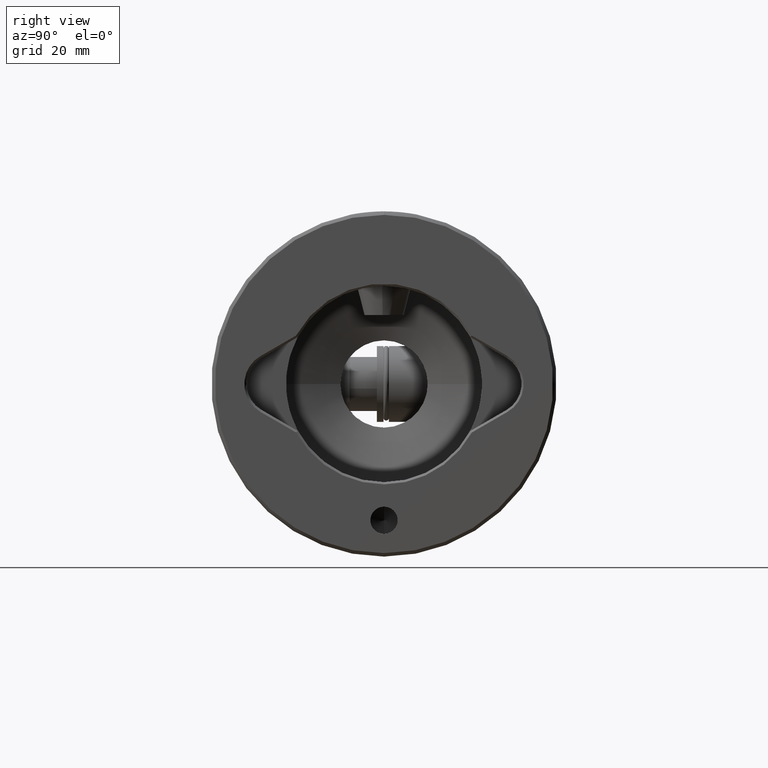
[diagram: clean part render]
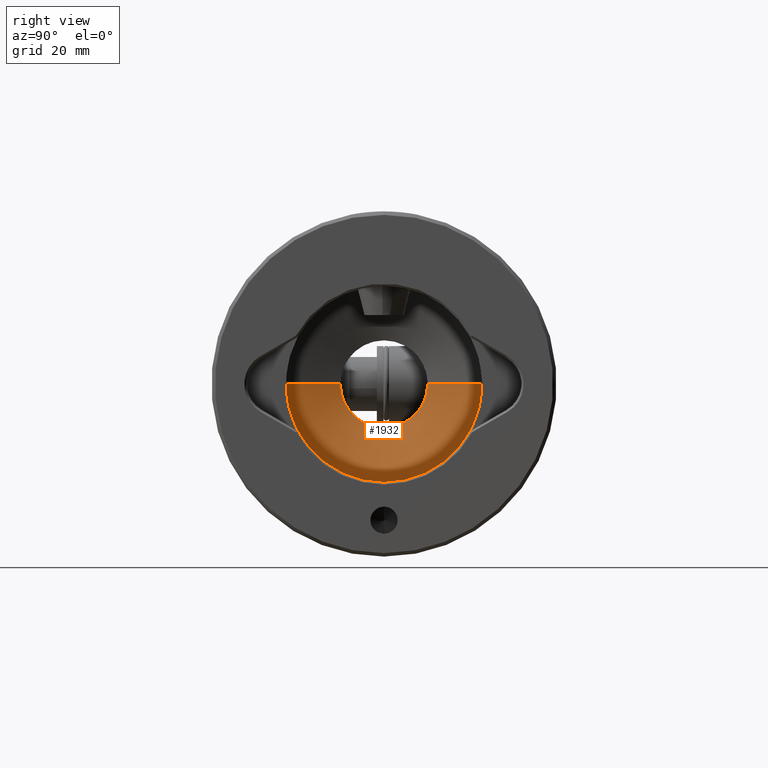
[diagram: same view with one face highlighted and labeled with its STEP entity id]
A machine part, right view. The second image highlights one B-rep face of the part: STEP entity #1932.
In plain terms, the highlighted conical surface has half-angle 70 deg.
Its self-contained STEP definition (entity closure, byte-faithful):
#69 = EDGE_CURVE ( 'NONE', #2098, #3569, #4363, .T. ) ;
#89 = CARTESIAN_POINT ( 'NONE',  ( 0.0000000000000000000, 18.24999999999998900, 42.00000000000000700 ) ) ;
#156 = DIRECTION ( 'NONE',  ( 0.0000000000000000000, -6.173258339316729700E-017, 1.000000000000000000 ) ) ;
#177 = VECTOR ( 'NONE', #3300, 1000.000000000000200 ) ;
#282 = DIRECTION ( 'NONE',  ( 0.0000000000000000000, 1.000000000000000000, 0.0000000000000000000 ) ) ;
#515 = ORIENTED_EDGE ( 'NONE', *, *, #69, .F. ) ;
#540 = ORIENTED_EDGE ( 'NONE', *, *, #3947, .F. ) ;
#602 = ORIENTED_EDGE ( 'NONE', *, *, #1815, .T. ) ;
#745 = VECTOR ( 'NONE', #4620, 1000.000000000000000 ) ;
#795 = CIRCLE ( 'NONE', #4270, 8.000000000000000000 ) ;
#1298 = CARTESIAN_POINT ( 'NONE',  ( 0.0000000000000000000, -4.268088572959712800E-015, 42.00000000000000700 ) ) ;
#1444 = CARTESIAN_POINT ( 'NONE',  ( 0.0000000000000000000, -4.268088572959712800E-015, 42.00000000000000700 ) ) ;
#1723 = EDGE_CURVE ( 'NONE', #3569, #1727, #3492, .T. ) ;
#1727 = VERTEX_POINT ( 'NONE', #2929 ) ;
#1762 = CIRCLE ( 'NONE', #4309, 8.000000000000000000 ) ;
#1815 = EDGE_CURVE ( 'NONE', #4645, #1727, #2232, .T. ) ;
#1932 = ADVANCED_FACE ( 'NONE', ( #4380 ), #2285, .F. ) ;
#1974 = DIRECTION ( 'NONE',  ( 0.0000000000000000000, -1.000000000000000000, 0.0000000000000000000 ) ) ;
#2029 = ORIENTED_EDGE ( 'NONE', *, *, #2733, .F. ) ;
#2070 = CARTESIAN_POINT ( 'NONE',  ( 2.234980408443918800E-015, -18.25000000000000000, 42.00000000000000700 ) ) ;
#2098 = VERTEX_POINT ( 'NONE', #4362 ) ;
#2232 = LINE ( 'NONE', #2070, #745 ) ;
#2285 = CONICAL_SURFACE ( 'NONE', #3282, 18.24999999999999600, 1.221730476396037000 ) ;
#2444 = EDGE_LOOP ( 'NONE', ( #2029, #602, #4252, #515, #540 ) ) ;
#2589 = DIRECTION ( 'NONE',  ( 0.0000000000000000000, 6.173258339316729700E-017, -1.000000000000000000 ) ) ;
#2733 = EDGE_CURVE ( 'NONE', #4645, #4079, #1762, .T. ) ;
#2772 = DIRECTION ( 'NONE',  ( 0.0000000000000000000, 1.000000000000000000, 0.0000000000000000000 ) ) ;
#2809 = CARTESIAN_POINT ( 'NONE',  ( 0.0000000000000000000, -4.498394007064265400E-015, 45.73069490122851000 ) ) ;
#2847 = DIRECTION ( 'NONE',  ( 0.0000000000000000000, 6.173258339316729700E-017, -1.000000000000000000 ) ) ;
#2929 = CARTESIAN_POINT ( 'NONE',  ( 2.234980408443919200E-015, -18.25000000000000400, 42.00000000000000700 ) ) ;
#3282 = AXIS2_PLACEMENT_3D ( 'NONE', #1298, #4572, #2772 ) ;
#3300 = DIRECTION ( 'NONE',  ( 0.0000000000000000000, 0.9396926207859105400, -0.3420201433256627200 ) ) ;
#3492 = CIRCLE ( 'NONE', #4102, 18.24999999999999600 ) ;
#3569 = VERTEX_POINT ( 'NONE', #89 ) ;
#3947 = EDGE_CURVE ( 'NONE', #4079, #2098, #795, .T. ) ;
#4022 = CARTESIAN_POINT ( 'NONE',  ( 1.607348923880901000E-015, -8.000000000000005300, 45.73069490122851000 ) ) ;
#4060 = CARTESIAN_POINT ( 'NONE',  ( 0.0000000000000000000, 18.24999999999999300, 42.00000000000000700 ) ) ;
#4079 = VERTEX_POINT ( 'NONE', #4662 ) ;
#4092 = CARTESIAN_POINT ( 'NONE',  ( 0.0000000000000000000, -4.498394007064265400E-015, 45.73069490122851000 ) ) ;
#4102 = AXIS2_PLACEMENT_3D ( 'NONE', #1444, #156, #1974 ) ;
#4252 = ORIENTED_EDGE ( 'NONE', *, *, #1723, .F. ) ;
#4270 = AXIS2_PLACEMENT_3D ( 'NONE', #2809, #2847, #282 ) ;
#4309 = AXIS2_PLACEMENT_3D ( 'NONE', #4092, #2589, #4428 ) ;
#4362 = CARTESIAN_POINT ( 'NONE',  ( 0.0000000000000000000, 7.999999999999994700, 45.73069490122851000 ) ) ;
#4363 = LINE ( 'NONE', #4060, #177 ) ;
#4380 = FACE_OUTER_BOUND ( 'NONE', #2444, .T. ) ;
#4428 = DIRECTION ( 'NONE',  ( 0.0000000000000000000, 1.000000000000000000, 0.0000000000000000000 ) ) ;
#4572 = DIRECTION ( 'NONE',  ( 0.0000000000000000000, 6.173258339316729700E-017, -1.000000000000000000 ) ) ;
#4620 = DIRECTION ( 'NONE',  ( 1.150791560227853000E-016, -0.9396926207859105400, -0.3420201433256628300 ) ) ;
#4645 = VERTEX_POINT ( 'NONE', #4022 ) ;
#4662 = CARTESIAN_POINT ( 'NONE',  ( -8.000000000000000000, 9.797174393178827600E-016, 45.73069490122851000 ) ) ;